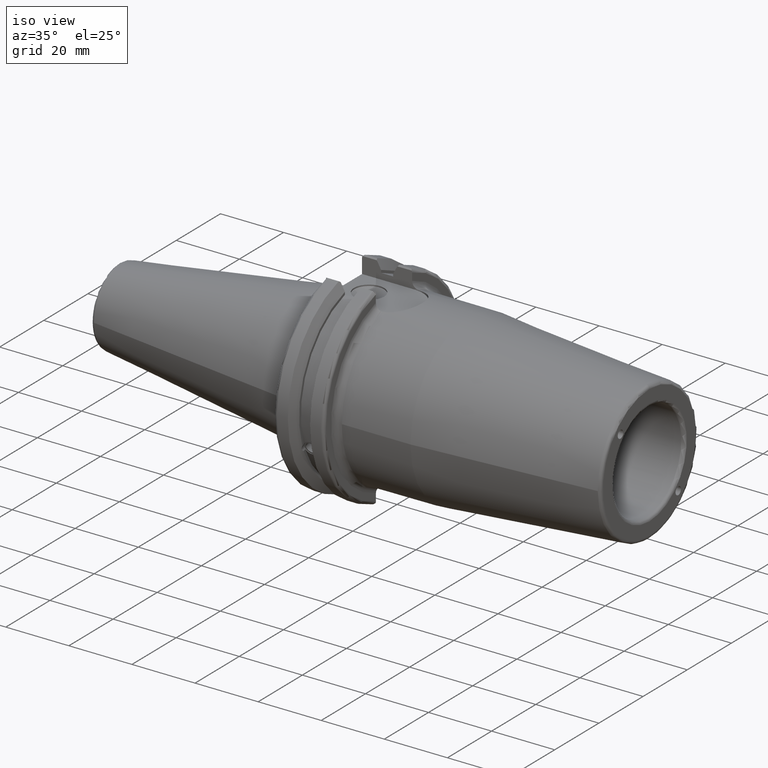
[diagram: clean part render]
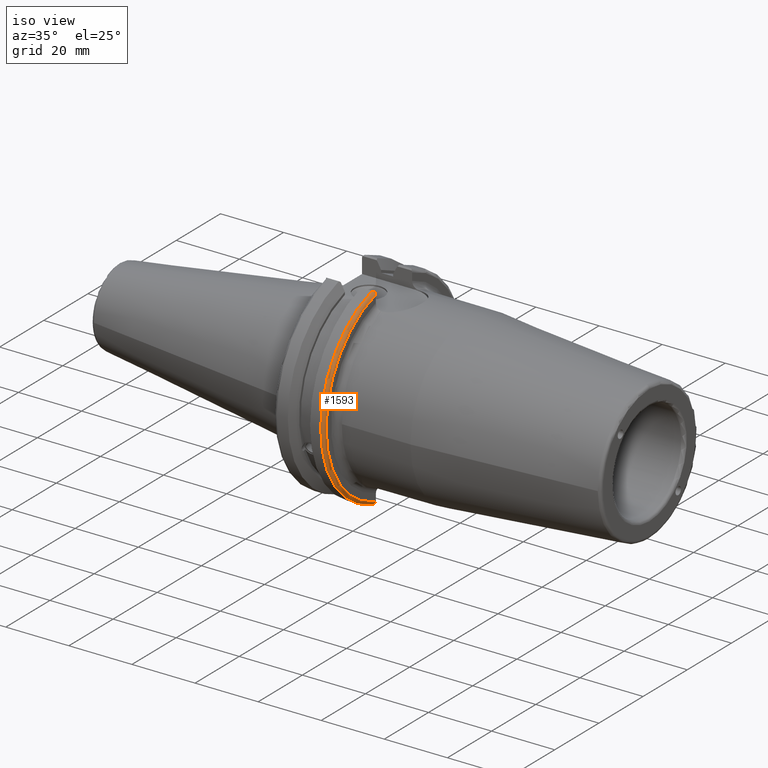
[diagram: same view with one face highlighted and labeled with its STEP entity id]
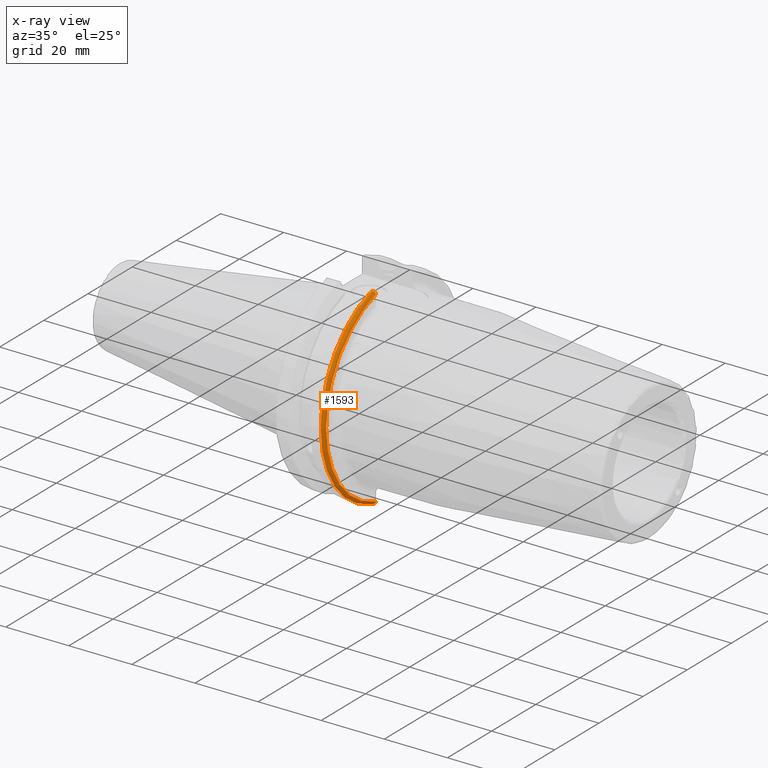
[diagram: x-ray of the same camera — body ghosted, the highlighted face saturated]
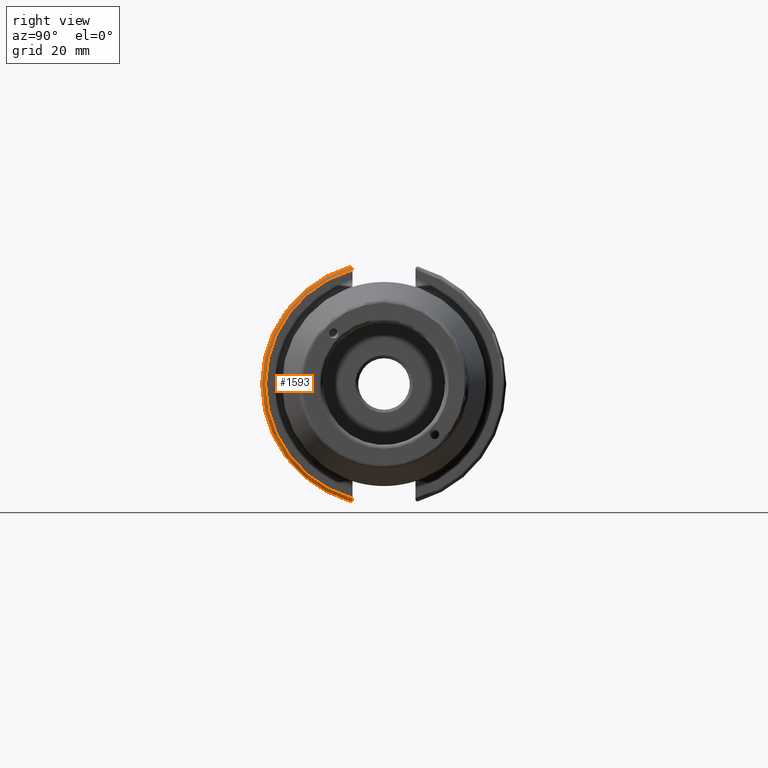
[diagram: same view with one face highlighted and labeled with its STEP entity id]
A machine part, iso view. The second image highlights one B-rep face of the part: STEP entity #1593.
The next image is the same camera in x-ray: the body ghosted, the highlighted face saturated — about 0% of this face is hidden behind the body in this view.
A second angle (right view) of the same face is appended — the face is thin or edge-on in the first view.
In plain terms, the highlighted toroidal blend (fillet) surface has major radius 30.75 mm and minor (blend) radius 1 mm.
Its self-contained STEP definition (entity closure, byte-faithful):
#52=B_SPLINE_CURVE_WITH_KNOTS('',3,(#2670,#2671,#2672,#2673,#2674,#2675),
 .UNSPECIFIED.,.F.,.F.,(4,2,4),(0.452747734489737,0.491589657245486,0.506162795212053),
 .UNSPECIFIED.);
#68=B_SPLINE_CURVE_WITH_KNOTS('',3,(#3085,#3086,#3087,#3088,#3089,#3090,
#3091,#3092),.UNSPECIFIED.,.F.,.F.,(4,2,2,4),(-0.103791979171438,-0.0729784742461446,
-0.0343524753874984,0.),.UNSPECIFIED.);
#69=B_SPLINE_CURVE_WITH_KNOTS('',3,(#3096,#3097,#3098,#3099,#3100,#3101,
#3102,#3103),.UNSPECIFIED.,.F.,.F.,(4,2,2,4),(0.,0.0343524753874978,0.0729784742461449,
0.104180282751877),.UNSPECIFIED.);
#70=B_SPLINE_CURVE_WITH_KNOTS('',3,(#3104,#3105,#3106,#3107,#3108,#3109),
 .UNSPECIFIED.,.F.,.F.,(4,2,4),(0.097738363091569,0.112311108149119,0.150804350305566),
 .UNSPECIFIED.);
#424=FACE_OUTER_BOUND('',#528,.T.);
#528=EDGE_LOOP('',(#1395,#1396,#1397,#1398,#1399,#1400));
#605=CIRCLE('',#1734,30.75);
#623=CIRCLE('',#1793,31.75);
#706=VERTEX_POINT('',#2667);
#707=VERTEX_POINT('',#2669);
#745=VERTEX_POINT('',#2922);
#781=VERTEX_POINT('',#3084);
#782=VERTEX_POINT('',#3093);
#783=VERTEX_POINT('',#3095);
#886=EDGE_CURVE('',#707,#706,#52,.T.);
#940=EDGE_CURVE('',#745,#707,#605,.T.);
#1001=EDGE_CURVE('',#706,#781,#68,.T.);
#1002=EDGE_CURVE('',#781,#782,#623,.T.);
#1003=EDGE_CURVE('',#782,#783,#69,.T.);
#1004=EDGE_CURVE('',#783,#745,#70,.T.);
#1395=ORIENTED_EDGE('',*,*,#886,.T.);
#1396=ORIENTED_EDGE('',*,*,#1001,.T.);
#1397=ORIENTED_EDGE('',*,*,#1002,.T.);
#1398=ORIENTED_EDGE('',*,*,#1003,.T.);
#1399=ORIENTED_EDGE('',*,*,#1004,.T.);
#1400=ORIENTED_EDGE('',*,*,#940,.T.);
#1527=TOROIDAL_SURFACE('',#1792,30.75,1.);
#1593=ADVANCED_FACE('',(#424),#1527,.T.);
#1734=AXIS2_PLACEMENT_3D('',#2923,#2060,#2061);
#1792=AXIS2_PLACEMENT_3D('',#3083,#2199,#2200);
#1793=AXIS2_PLACEMENT_3D('',#3094,#2201,#2202);
#2060=DIRECTION('center_axis',(-1.,0.,0.));
#2061=DIRECTION('ref_axis',(0.,-1.,1.60812264967664E-16));
#2199=DIRECTION('center_axis',(1.,0.,0.));
#2200=DIRECTION('ref_axis',(0.,0.,-1.));
#2201=DIRECTION('center_axis',(1.,0.,0.));
#2202=DIRECTION('ref_axis',(0.,-1.,1.60812264967664E-16));
#2667=CARTESIAN_POINT('',(18.9040574194482,-8.193,30.1777870228437));
#2669=CARTESIAN_POINT('',(19.05,-8.193,29.6384421149291));
#2670=CARTESIAN_POINT('Ctrl Pts',(19.05,-8.193,29.6384421149291));
#2671=CARTESIAN_POINT('Ctrl Pts',(19.05,-8.193,29.7679151907816));
#2672=CARTESIAN_POINT('Ctrl Pts',(19.0204850929966,-8.193,29.9204536766741));
#2673=CARTESIAN_POINT('Ctrl Pts',(18.9535486819469,-8.193,30.0854427413215));
#2674=CARTESIAN_POINT('Ctrl Pts',(18.930778866222,-8.193,30.1323261874432));
#2675=CARTESIAN_POINT('Ctrl Pts',(18.9040574194482,-8.193,30.1777870228437));
#2922=CARTESIAN_POINT('',(19.05,-8.19,-29.6392712461019));
#2923=CARTESIAN_POINT('Origin',(19.05,0.,0.));
#3083=CARTESIAN_POINT('Origin',(18.05,0.,0.));
#3084=CARTESIAN_POINT('',(18.05,-8.67204822802685,30.5427254764662));
#3085=CARTESIAN_POINT('Ctrl Pts',(18.9040574194482,-8.193,30.1777870228437));
#3086=CARTESIAN_POINT('Ctrl Pts',(18.8558700609041,-8.27233929018694,30.2382276135366));
#3087=CARTESIAN_POINT('Ctrl Pts',(18.7918194646085,-8.34987038894601,30.297290725836));
#3088=CARTESIAN_POINT('Ctrl Pts',(18.6396724190507,-8.48862804755884,30.4029961692546));
#3089=CARTESIAN_POINT('Ctrl Pts',(18.5184414294771,-8.56482138642532,30.4610401774263));
#3090=CARTESIAN_POINT('Ctrl Pts',(18.2983170433775,-8.6471881193939,30.5237870709558));
#3091=CARTESIAN_POINT('Ctrl Pts',(18.1645082512917,-8.67204822802685,30.5427254764662));
#3092=CARTESIAN_POINT('Ctrl Pts',(18.05,-8.67204822802685,30.5427254764662));
#3093=CARTESIAN_POINT('',(18.05,-8.67204822802686,-30.5427254764662));
#3094=CARTESIAN_POINT('Origin',(18.05,0.,0.));
#3095=CARTESIAN_POINT('',(18.9058722749097,-8.19,-30.1755016258903));
#3096=CARTESIAN_POINT('Ctrl Pts',(18.05,-8.67204822802685,-30.5427254764662));
#3097=CARTESIAN_POINT('Ctrl Pts',(18.1645082512917,-8.67204822802685,-30.5427254764662));
#3098=CARTESIAN_POINT('Ctrl Pts',(18.2983170433775,-8.6471881193939,-30.5237870709558));
#3099=CARTESIAN_POINT('Ctrl Pts',(18.5184414294771,-8.56482138642532,-30.4610401774263));
#3100=CARTESIAN_POINT('Ctrl Pts',(18.6396724190507,-8.48862804755883,-30.4029961692546));
#3101=CARTESIAN_POINT('Ctrl Pts',(18.7926702662319,-8.34909446036477,-30.2966996242308));
#3102=CARTESIAN_POINT('Ctrl Pts',(18.8574463042989,-8.2703682833078,-30.2367261024977));
#3103=CARTESIAN_POINT('Ctrl Pts',(18.9058722749097,-8.19,-30.1755016258903));
#3104=CARTESIAN_POINT('Ctrl Pts',(18.9058722749097,-8.19,-30.1755016258903));
#3105=CARTESIAN_POINT('Ctrl Pts',(18.9324477233044,-8.19,-30.1299319366157));
#3106=CARTESIAN_POINT('Ctrl Pts',(18.9550700364447,-8.19,-30.0829389905409));
#3107=CARTESIAN_POINT('Ctrl Pts',(19.0210043632013,-8.19,-29.9188002007263));
#3108=CARTESIAN_POINT('Ctrl Pts',(19.05,-8.19,-29.76758205329));
#3109=CARTESIAN_POINT('Ctrl Pts',(19.05,-8.19,-29.6392712461019));